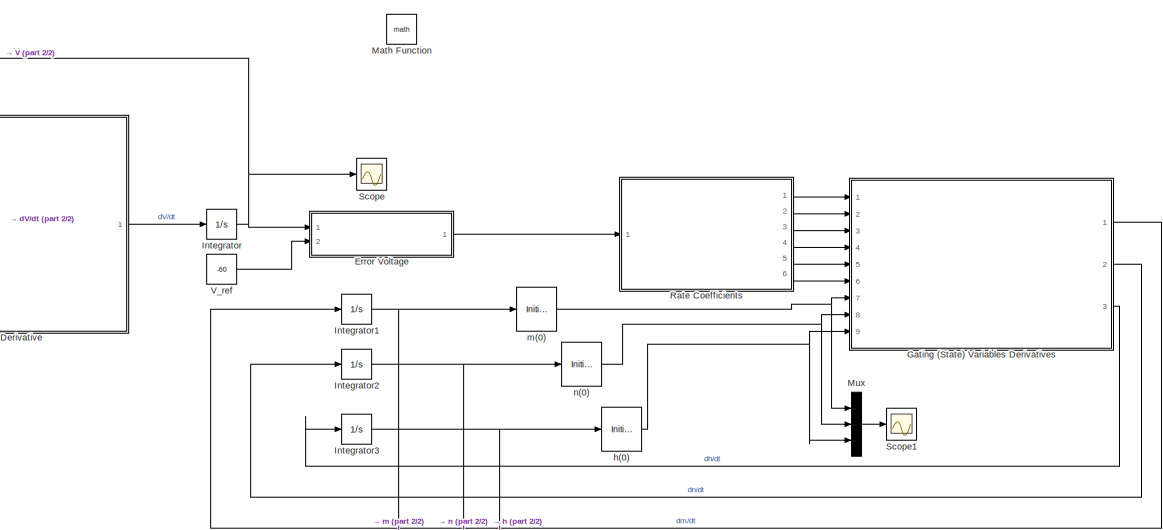
[diagram: root canvas - part 1/2, center side, full height]
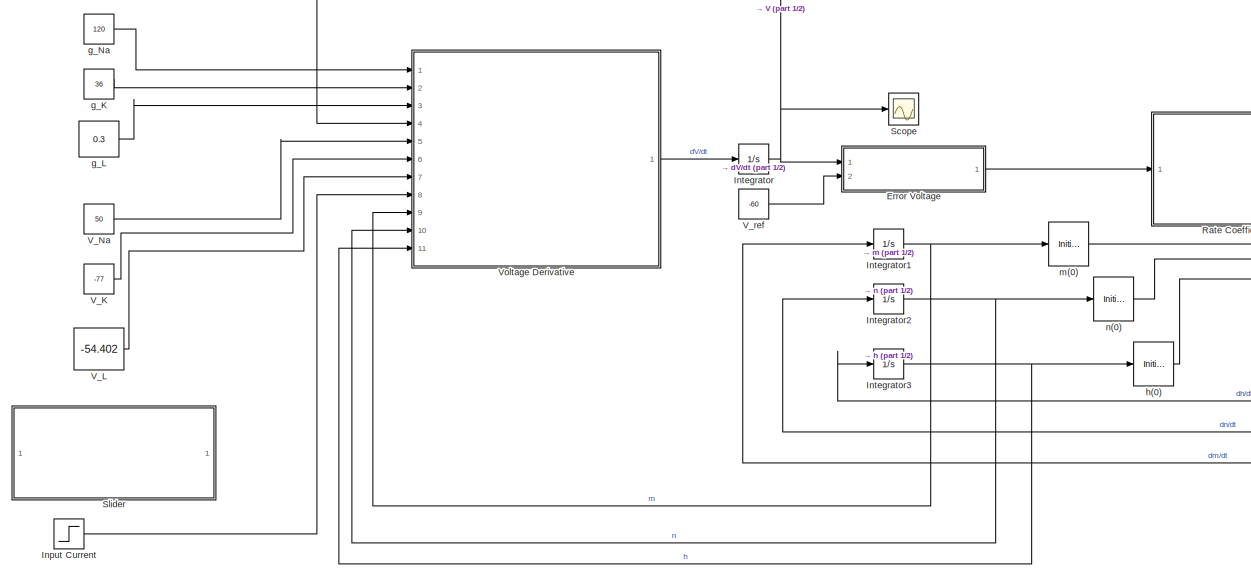
[diagram: root canvas - part 2/2, most of the canvas]
MODEL slx_90a1d9187c51
KIND model
CONFIG AbsTol = auto
CONFIG EnableMultiTasking = off
CONFIG FixedStep = auto
CONFIG MaxStep = auto
CONFIG MinStep = auto
CONFIG RelTol = 1e-3
CONFIG SampleTimeConstraint = Unconstrained
CONFIG Solver = VariableStepAuto
CONFIG SolverName = VariableStepAuto
CONFIG StartTime = 0.0
CONFIG StopTime = 100
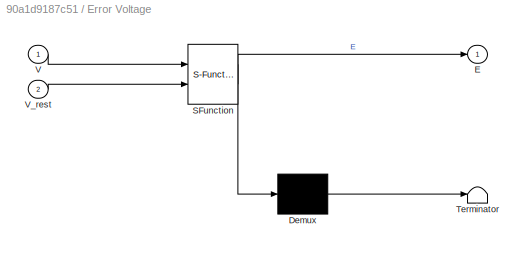
BLOCK [SubSystem] Error Voltage
  ErrorFcn = Stateflow.Translate.translate
  PermitHierarchicalResolution = ExplicitOnly
  Ports = [2, 1]
  RequestExecContextInheritance = off
  SFBlockType = MATLAB Function
  TreatAsAtomicUnit = on
  Variant = off
BLOCK [Demux] Error Voltage/ Demux 
  Outputs = 1
  Ports = [1, 1]
BLOCK [S-Function] Error Voltage/ SFunction 
  EnableBusSupport = on
  FunctionName = sf_sfun
  PortCounts = [2 2]
  Ports = [2, 2]
  SFcnIsStateOwnerBlock = off
  SFunctionDeploymentMode = off
  Tag = Stateflow S-Function ehe 1
BLOCK [Terminator] Error Voltage/ Terminator 
BLOCK [Outport] Error Voltage/E
  IconDisplay = Port number
BLOCK [Inport] Error Voltage/V
  IconDisplay = Port number
BLOCK [Inport] Error Voltage/V_rest
  IconDisplay = Port number
  Port = 2
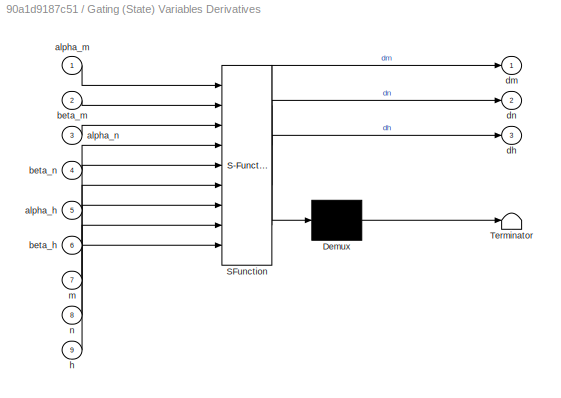
BLOCK [SubSystem] Gating (State) Variables Derivatives
  ErrorFcn = Stateflow.Translate.translate
  PermitHierarchicalResolution = ExplicitOnly
  Ports = [9, 3]
  RequestExecContextInheritance = off
  SFBlockType = MATLAB Function
  TreatAsAtomicUnit = on
  Variant = off
BLOCK [Demux] Gating (State) Variables Derivatives/ Demux 
  Outputs = 1
  Ports = [1, 1]
BLOCK [S-Function] Gating (State) Variables Derivatives/ SFunction 
  EnableBusSupport = on
  FunctionName = sf_sfun
  PortCounts = [9 4]
  Ports = [9, 4]
  SFcnIsStateOwnerBlock = off
  SFunctionDeploymentMode = off
  Tag = Stateflow S-Function ehe 3
BLOCK [Terminator] Gating (State) Variables Derivatives/ Terminator 
BLOCK [Inport] Gating (State) Variables Derivatives/alpha_h
  IconDisplay = Port number
  Port = 5
BLOCK [Inport] Gating (State) Variables Derivatives/alpha_m
  IconDisplay = Port number
BLOCK [Inport] Gating (State) Variables Derivatives/alpha_n
  IconDisplay = Port number
  Port = 3
BLOCK [Inport] Gating (State) Variables Derivatives/beta_h
  IconDisplay = Port number
  Port = 6
BLOCK [Inport] Gating (State) Variables Derivatives/beta_m
  IconDisplay = Port number
  Port = 2
BLOCK [Inport] Gating (State) Variables Derivatives/beta_n
  IconDisplay = Port number
  Port = 4
BLOCK [Outport] Gating (State) Variables Derivatives/dh
  IconDisplay = Port number
  Port = 3
BLOCK [Outport] Gating (State) Variables Derivatives/dm
  IconDisplay = Port number
BLOCK [Outport] Gating (State) Variables Derivatives/dn
  IconDisplay = Port number
  Port = 2
BLOCK [Inport] Gating (State) Variables Derivatives/h
  IconDisplay = Port number
  Port = 9
BLOCK [Inport] Gating (State) Variables Derivatives/m
  IconDisplay = Port number
  Port = 7
BLOCK [Inport] Gating (State) Variables Derivatives/n
  IconDisplay = Port number
  Port = 8
BLOCK [Step] Input Current
  After = 25
  SampleTime = 0
  Time = 50
BLOCK [Integrator] Integrator
  Ports = [1, 1]
BLOCK [Integrator] Integrator1
  Ports = [1, 1]
BLOCK [Integrator] Integrator2
  Ports = [1, 1]
BLOCK [Integrator] Integrator3
  Ports = [1, 1]
BLOCK [Math] Math Function
  Ports = [1, 1]
BLOCK [Mux] Mux
  DisplayOption = bar
  Inputs = 3
  Ports = [3, 1]
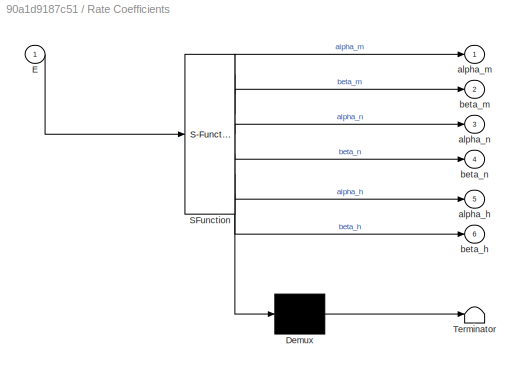
BLOCK [SubSystem] Rate Coefficients
  ErrorFcn = Stateflow.Translate.translate
  PermitHierarchicalResolution = ExplicitOnly
  Ports = [1, 6]
  RequestExecContextInheritance = off
  SFBlockType = MATLAB Function
  TreatAsAtomicUnit = on
  Variant = off
BLOCK [Demux] Rate Coefficients/ Demux 
  Outputs = 1
  Ports = [1, 1]
BLOCK [S-Function] Rate Coefficients/ SFunction 
  EnableBusSupport = on
  FunctionName = sf_sfun
  PortCounts = [1 7]
  Ports = [1, 7]
  SFcnIsStateOwnerBlock = off
  SFunctionDeploymentMode = off
  Tag = Stateflow S-Function ehe 2
BLOCK [Terminator] Rate Coefficients/ Terminator 
BLOCK [Inport] Rate Coefficients/E
  IconDisplay = Port number
BLOCK [Outport] Rate Coefficients/alpha_h
  IconDisplay = Port number
  Port = 5
BLOCK [Outport] Rate Coefficients/alpha_m
  IconDisplay = Port number
BLOCK [Outport] Rate Coefficients/alpha_n
  IconDisplay = Port number
  Port = 3
BLOCK [Outport] Rate Coefficients/beta_h
  IconDisplay = Port number
  Port = 6
BLOCK [Outport] Rate Coefficients/beta_m
  IconDisplay = Port number
  Port = 2
BLOCK [Outport] Rate Coefficients/beta_n
  IconDisplay = Port number
  Port = 4
BLOCK [Scope] Scope
  NumInputPorts = 1
  Ports = [1]
  ScopeSpecificationString = Simulink.scopes.TimeScopeBlockCfg('CurrentConfiguration', extmgr.ConfigurationSet(extmgr.Configuration('Core','General UI',true,'FigureColor',[1 1 1]),extmgr.Configuration('Core','Source UI',true),extmgr.Configuration('Sources','WiredSimulink',true),extmgr.Configuration('Visuals','Time Domain',true,'SerializedDisplays',{struct('MinYLimReal','-88.06517','MaxYLimReal','58.74292','YLabelReal','Potent...<+1598ch>
BLOCK [Scope] Scope1
  NumInputPorts = 1
  Ports = [1]
  ScopeSpecificationString = Simulink.scopes.TimeScopeBlockCfg('CurrentConfiguration', extmgr.ConfigurationSet(extmgr.Configuration('Core','General UI',true,'FigureColor',[1 1 1]),extmgr.Configuration('Core','Source UI',true),extmgr.Configuration('Sources','WiredSimulink',true,'DataLoggingVariableName','ScopeData1'),extmgr.Configuration('Visuals','Time Domain',true,'SerializedDisplays',{struct('MinYLimReal','-0.125','MaxYLimR...<+1980ch>
BLOCK [SubSystem] Slider
  DialogController = hmiCreateDDGDialog
  IsWebBlock = on
  MaskHideContents = on
  Ports = []
  RequestExecContextInheritance = off
  Variant = off
BLOCK [Constant] V_K 
  Value = -77
BLOCK [Constant] V_L 
  Value = -54.402
BLOCK [Constant] V_Na
  Value = 50
BLOCK [Constant] V_ref
  Value = -60
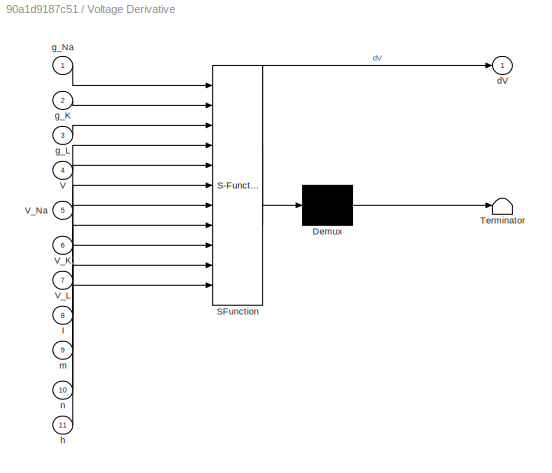
BLOCK [SubSystem] Voltage Derivative 
  ErrorFcn = Stateflow.Translate.translate
  PermitHierarchicalResolution = ExplicitOnly
  Ports = [11, 1]
  RequestExecContextInheritance = off
  SFBlockType = MATLAB Function
  TreatAsAtomicUnit = on
  Variant = off
BLOCK [Demux] Voltage Derivative / Demux 
  Outputs = 1
  Ports = [1, 1]
BLOCK [S-Function] Voltage Derivative / SFunction 
  EnableBusSupport = on
  FunctionName = sf_sfun
  PortCounts = [11 2]
  Ports = [11, 2]
  SFcnIsStateOwnerBlock = off
  SFunctionDeploymentMode = off
  Tag = Stateflow S-Function ehe 4
BLOCK [Terminator] Voltage Derivative / Terminator 
BLOCK [Inport] Voltage Derivative /I
  IconDisplay = Port number
  Port = 8
BLOCK [Inport] Voltage Derivative /V
  IconDisplay = Port number
  Port = 4
BLOCK [Inport] Voltage Derivative /V_K
  IconDisplay = Port number
  Port = 6
BLOCK [Inport] Voltage Derivative /V_L
  IconDisplay = Port number
  Port = 7
BLOCK [Inport] Voltage Derivative /V_Na
  IconDisplay = Port number
  Port = 5
BLOCK [Outport] Voltage Derivative /dV
  IconDisplay = Port number
BLOCK [Inport] Voltage Derivative /g_K
  IconDisplay = Port number
  Port = 2
BLOCK [Inport] Voltage Derivative /g_L
  IconDisplay = Port number
  Port = 3
BLOCK [Inport] Voltage Derivative /g_Na
  IconDisplay = Port number
BLOCK [Inport] Voltage Derivative /h
  IconDisplay = Port number
  Port = 11
BLOCK [Inport] Voltage Derivative /m
  IconDisplay = Port number
  Port = 9
BLOCK [Inport] Voltage Derivative /n
  IconDisplay = Port number
  Port = 10
BLOCK [Constant] g_K
  Value = 36
BLOCK [Constant] g_L 
  Value = 0.3
BLOCK [Constant] g_Na 
  Value = 120
BLOCK [InitialCondition] h(0)
BLOCK [InitialCondition] m(0)
  Value = 0
BLOCK [InitialCondition] n(0)
  Value = 0
LINE Error Voltage:1 -> Rate Coefficients:1
LINE Gating (State) Variables Derivatives:1 -> Integrator1:1
LINE Gating (State) Variables Derivatives:2 -> Integrator2:1
LINE Gating (State) Variables Derivatives:3 -> Integrator3:1
LINE Input Current:1 -> Voltage Derivative :8
NET Integrator1:1 -> Voltage Derivative :9, m(0):1
NET Integrator2:1 -> Voltage Derivative :10, n(0):1
NET Integrator3:1 -> Voltage Derivative :11, h(0):1
NET Integrator:1 -> Error Voltage:1, Scope:1, Voltage Derivative :4
LINE Mux:1 -> Scope1:1
LINE Rate Coefficients:1 -> Gating (State) Variables Derivatives:1
LINE Rate Coefficients:2 -> Gating (State) Variables Derivatives:2
LINE Rate Coefficients:3 -> Gating (State) Variables Derivatives:3
LINE Rate Coefficients:4 -> Gating (State) Variables Derivatives:4
LINE Rate Coefficients:5 -> Gating (State) Variables Derivatives:5
LINE Rate Coefficients:6 -> Gating (State) Variables Derivatives:6
LINE V_K :1 -> Voltage Derivative :6
LINE V_L :1 -> Voltage Derivative :7
LINE V_Na:1 -> Voltage Derivative :5
LINE V_ref:1 -> Error Voltage:2
LINE Voltage Derivative :1 -> Integrator:1
LINE g_K:1 -> Voltage Derivative :2
LINE g_L :1 -> Voltage Derivative :3
LINE g_Na :1 -> Voltage Derivative :1
NET h(0):1 -> Gating (State) Variables Derivatives:9, Mux:3
NET m(0):1 -> Gating (State) Variables Derivatives:7, Mux:1
NET n(0):1 -> Gating (State) Variables Derivatives:8, Mux:2
note: NET lines group one-source signal fan-out (src -> all destinations, sorted); 1:1 wires keep LINE
CHART Error Voltage states=1 transitions=1
  STATE_LABEL 'eML_blk_kernel()'
  STATE_LABEL 'SCRIPT:\nfunction E = calcEpsilon(V, V_rest)\nE = V - V_rest;'
CHART Rate Coefficients states=1 transitions=1
  STATE_LABEL 'eML_blk_kernel()'
  STATE_LABEL 'SCRIPT:\nfunction [alpha_m, beta_m, alpha_n, beta_n, alpha_h, beta_h] = calcCoeffs(E)\nalpha_m = (0.1 * (25 - E )) / (exp((25 - E) / 10) - 1);\nbeta_m = 4 * exp(-E/18);\nalpha_n = (0.01 * (10 - E)) / (exp((10 -E) / 10) - 1);\nbeta_n = 0.125 * exp(-E / 80);\nalpha_h = 0.07 * exp(-E / 20);\nbeta_h = 1 / (1 + exp((30 - E) / 10));'
CHART Gating (State) Variables Derivatives states=1 transitions=1
  STATE_LABEL 'eML_blk_kernel()'
  STATE_LABEL 'SCRIPT:\nfunction [dm, dn, dh] = calcGatingDer(alpha_m, beta_m, alpha_n, beta_n, alpha_h, beta_h, m, n, h)\ndm = alpha_m * (1 - m) - beta_m * m;\ndn = alpha_n * (1 - n) - beta_n * n;\ndh = alpha_h * (1 - h) - beta_h * h;'
CHART Voltage Derivative
 states=1 transitions=1
  STATE_LABEL 'eML_blk_kernel()'
  STATE_LABEL 'SCRIPT:\nfunction dV = calcVoltageDer(g_Na, g_K, g_L, V, V_Na, V_K, V_L, I, m, n, h)\ndV = I - g_Na * m^3 * h * (V - V_Na) - g_K * n^4 * (V - V_K) - g_L * (V - V_L);'
